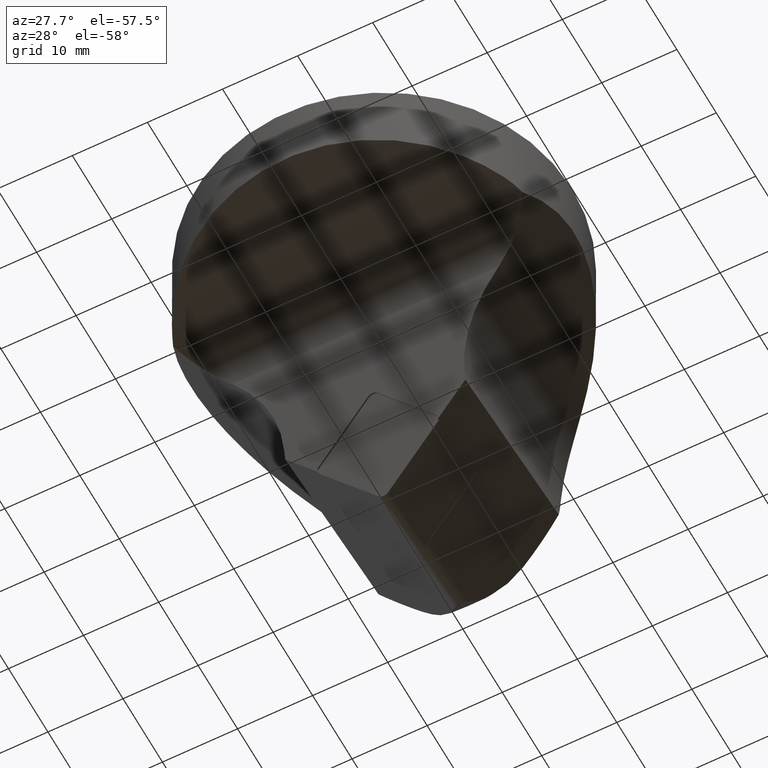
[diagram: clean part render]
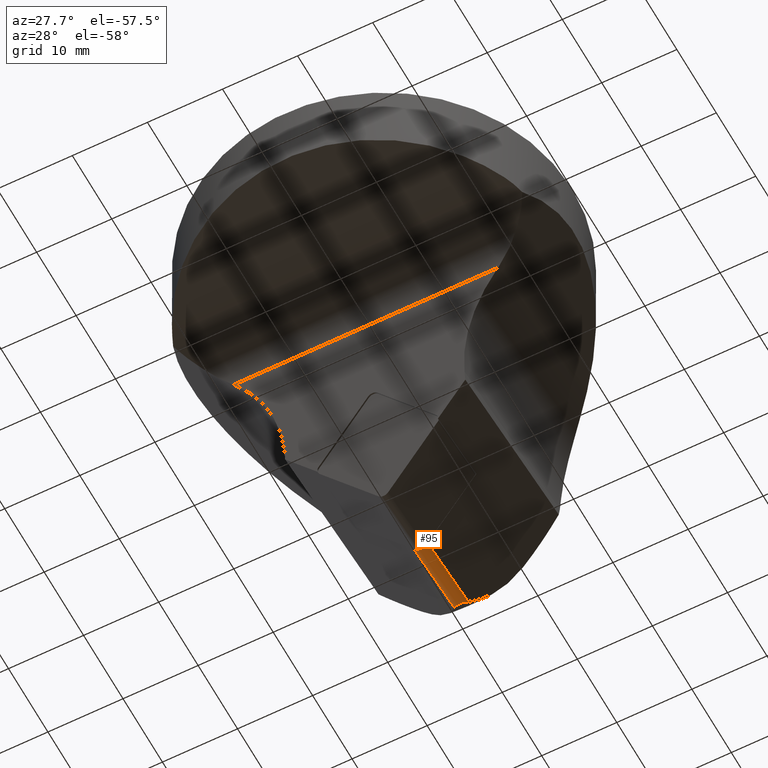
[diagram: same view with one face highlighted and labeled with its STEP entity id]
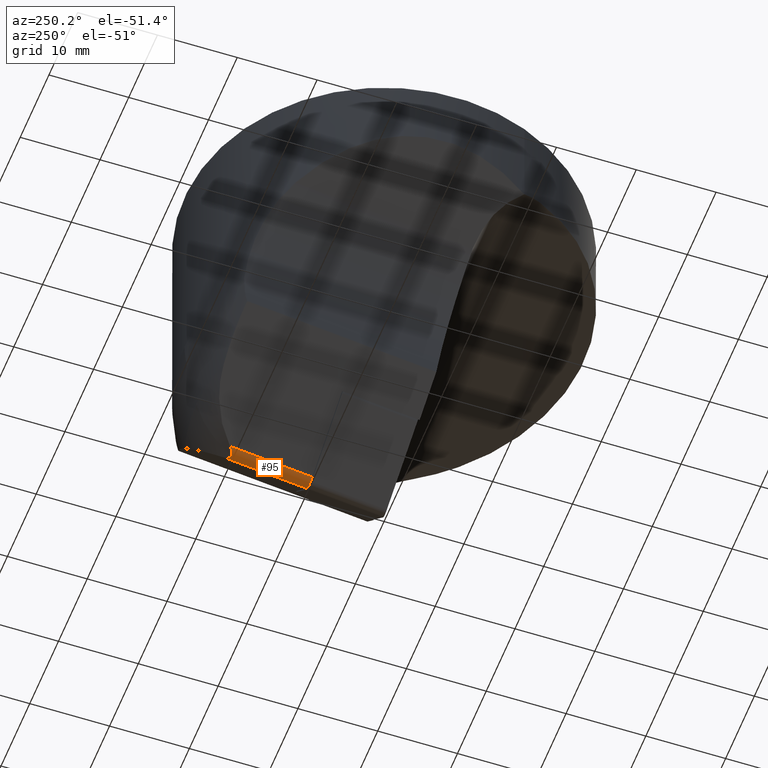
[diagram: same view with one face highlighted and labeled with its STEP entity id]
A machine part, auxiliary view. The second image highlights one B-rep face of the part: STEP entity #95.
A second angle (auxiliary view) of the same face is appended — the face is thin or edge-on in the first view.
In plain terms, the highlighted cylindrical surface (edge-blend (fillet) strip) has radius 1.2 mm, axis along (-0, 0.9903, 0.1392).
Its self-contained STEP definition (entity closure, byte-faithful):
#95=ADVANCED_FACE('',(#153),#154,.T.);
#153=FACE_OUTER_BOUND('',#228,.T.);
#154=CYLINDRICAL_SURFACE('',#229,1.2);
#228=EDGE_LOOP('',(#432,#433,#434,#435,#436));
#229=AXIS2_PLACEMENT_3D('',#437,#438,#439);
#432=ORIENTED_EDGE('',*,*,#625,.T.);
#433=ORIENTED_EDGE('',*,*,#638,.T.);
#434=ORIENTED_EDGE('',*,*,#639,.T.);
#435=ORIENTED_EDGE('',*,*,#640,.T.);
#436=ORIENTED_EDGE('',*,*,#634,.T.);
#437=CARTESIAN_POINT('',(1.37716160953107E-007,-0.219002060417643,-47.8727419098467));
#438=DIRECTION('',(-5.0385871428406E-017,0.99026806874157,0.139173100960065));
#439=DIRECTION('',(-7.85555786313062E-015,0.139173100960065,-0.99026806874157));
#625=EDGE_CURVE('',#759,#757,#760,.T.);
#634=EDGE_CURVE('',#775,#759,#776,.T.);
#638=EDGE_CURVE('',#757,#782,#783,.T.);
#639=EDGE_CURVE('',#782,#784,#785,.T.);
#640=EDGE_CURVE('',#784,#775,#786,.T.);
#757=VERTEX_POINT('',#955);
#759=VERTEX_POINT('',#958);
#760=CIRCLE('',#959,1.2);
#775=VERTEX_POINT('',#980);
#776=LINE('',#981,#982);
#782=VERTEX_POINT('',#1010);
#783=LINE('',#1011,#1012);
#784=VERTEX_POINT('',#1013);
#785=B_SPLINE_CURVE_WITH_KNOTS('',3,(#1014,#1015,#1016,#1017,#1018,#1019,#1020,#1021,#1022,#1023,#1024,#1025,#1026,#1027,#1028,#1029,#1030,#1031,#1032,#1033,#1034,#1035,#1036,#1037,#1038,#1039,#1040,#1041,#1042,#1043,#1044,#1045,#1046,#1047,#1048,#1049,#1050,#1051,#1052),.UNSPECIFIED.,.T.,.F.,(4,2,2,2,2,2,2,2,2,2,2,2,3,2,2,2,2,2,4),(-6.55959540968097,-6.28438091401462,-5.43460213958904,-4.76236291249632,-4.26660962037875,-3.8803165286399,-3.54117582693502,-3.19143252755743,-2.79082664010572,-2.27902404821558,-1.60644723823488,-0.772280773483495,-0.0,0.475300806769262,0.790669706954464,1.08226974436942,1.41214377442436,1.87679784633461,2.26297390892368),.UNSPECIFIED.);
#786=B_SPLINE_CURVE_WITH_KNOTS('',3,(#1053,#1054,#1055,#1056,#1057,#1058,#1059,#1060,#1061,#1062,#1063,#1064,#1065,#1066,#1067,#1068,#1069,#1070,#1071,#1072,#1073,#1074,#1075,#1076,#1077,#1078,#1079,#1080,#1081,#1082,#1083,#1084,#1085,#1086,#1087,#1088,#1089,#1090,#1091,#1092,#1093),.UNSPECIFIED.,.T.,.F.,(4,2,2,2,2,2,2,2,2,2,3,2,2,2,2,2,2,2,2,4),(-6.83424824080733,-5.77560963764622,-4.80357851117702,-4.09139871517256,-3.56036660420175,-3.12484420139114,-2.70961674600007,-2.2838456705617,-1.72956418180956,-0.974378011728449,-0.0,0.0264698733989359,1.03543620296243,1.83111035612359,2.29650190307121,2.68062834295978,3.08254479617005,3.61276562635857,4.40831056555855,4.42241500921273),.UNSPECIFIED.);
#955=CARTESIAN_POINT('',(-0.919253194026623,9.31670149272944,-47.3115117548546));
#958=CARTESIAN_POINT('',(0.91925346945893,9.31670149272945,-47.3115117548546));
#959=AXIS2_PLACEMENT_3D('',#1322,#1323,#1324);
#980=CARTESIAN_POINT('',(0.91925346946594,19.6431831558182,-45.8602194023767));
#981=CARTESIAN_POINT('',(0.91925346945893,19.6431831558194,-45.860219402385));
#982=VECTOR('',#1337,20.2281631507146);
#1010=CARTESIAN_POINT('',(-0.919253194033633,19.6431831707988,-45.8602194002713));
#1011=CARTESIAN_POINT('',(-0.919253194026622,-0.388120901628177,-48.675435594796));
#1012=VECTOR('',#1342,20.2281631658424);
#1013=CARTESIAN_POINT('',(-1.76549147455014E-014,19.1380764292221,-46.3640750285353));
#1014=CARTESIAN_POINT('',(0.91925346946594,19.6431831558182,-45.8602194023767));
#1015=CARTESIAN_POINT('',(0.966868108359388,19.7067391566349,-45.7939846072227));
#1016=CARTESIAN_POINT('',(1.00913168360282,19.7738824757113,-45.7229012055999));
#1017=CARTESIAN_POINT('',(1.15765079633082,20.0575175524389,-45.4168609497786));
#1018=CARTESIAN_POINT('',(1.20860170719827,20.282294831118,-45.1603523919933));
#1019=CARTESIAN_POINT('',(1.19108283098418,20.6561568001406,-44.7091199170116));
#1020=CARTESIAN_POINT('',(1.14504498093148,20.8157282442201,-44.5075921159865));
#1021=CARTESIAN_POINT('',(0.990483802586378,21.0633399102664,-44.1835118925231));
#1022=CARTESIAN_POINT('',(0.900888694903316,21.1600012550039,-44.0530914473245));
#1023=CARTESIAN_POINT('',(0.697043259769537,21.3046279880159,-43.8542038387581));
#1024=CARTESIAN_POINT('',(0.59308815367722,21.3582440844073,-43.7790082018196));
#1025=CARTESIAN_POINT('',(0.373772257418937,21.433469937462,-43.6726623927817));
#1026=CARTESIAN_POINT('',(0.263766953666608,21.4573632414448,-43.6384639138847));
#1027=CARTESIAN_POINT('',(0.031663905631691,21.4801628866342,-43.6058297160695));
#1028=CARTESIAN_POINT('',(-0.0859073444044327,21.477821728047,-43.6091982821086));
#1029=CARTESIAN_POINT('',(-0.329290780529632,21.4457089209316,-43.6551162606808));
#1030=CARTESIAN_POINT('',(-0.448236864060736,21.412811809082,-43.702079833585));
#1031=CARTESIAN_POINT('',(-0.689090151037656,21.3128147883933,-43.8427136513167));
#1032=CARTESIAN_POINT('',(-0.808263236579696,21.2363782344836,-43.9491072620284));
#1033=CARTESIAN_POINT('',(-1.03471754923465,21.0188902164029,-44.2430560435773));
#1034=CARTESIAN_POINT('',(-1.12314091664907,20.8683183061455,-44.4409621368386));
#1035=CARTESIAN_POINT('',(-1.22214266757521,20.4905165980015,-44.9137232095647));
#1036=CARTESIAN_POINT('',(-1.20610010768759,20.2655971898546,-45.1798026622446));
#1037=CARTESIAN_POINT('',(-1.06724039687189,19.8512961969417,-45.6431629922968));
#1038=CARTESIAN_POINT('',(-0.954759823346634,19.6668572007335,-45.8375200756115));
#1039=CARTESIAN_POINT('',(-0.812625584689192,19.5165564848648,-45.9907394427468));
#1040=CARTESIAN_POINT('',(-0.725148956210287,19.4240537915915,-46.0850384222275));
#1041=CARTESIAN_POINT('',(-0.618574835808982,19.3362455182179,-46.1720900348295));
#1042=CARTESIAN_POINT('',(-0.409715105337273,19.2224842267246,-46.2831240948654));
#1043=CARTESIAN_POINT('',(-0.318742710164303,19.1861930074379,-46.3180192133687));
#1044=CARTESIAN_POINT('',(-0.132220224303352,19.1428687671453,-46.3595376734713));
#1045=CARTESIAN_POINT('',(-0.0409592887963538,19.1346228232487,-46.3673707051365));
#1046=CARTESIAN_POINT('',(0.153788271953298,19.1447863627644,-46.3576723597325));
#1047=CARTESIAN_POINT('',(0.251120755589364,19.1664210521449,-46.3370573351116));
#1048=CARTESIAN_POINT('',(0.468204002455675,19.2453547459513,-46.2609395924479));
#1049=CARTESIAN_POINT('',(0.584994137000528,19.3151052774825,-46.1931693495643));
#1050=CARTESIAN_POINT('',(0.775109546384282,19.471875828696,-46.036554478201));
#1051=CARTESIAN_POINT('',(0.852441458983164,19.5540025111363,-45.953158883406));
#1052=CARTESIAN_POINT('',(0.91925346946594,19.6431831558182,-45.8602194023767));
#1053=CARTESIAN_POINT('',(0.91925346947295,19.643183155817,-45.8602194023684));
#1054=CARTESIAN_POINT('',(1.05238650612989,19.8208890795261,-45.6750234286869));
#1055=CARTESIAN_POINT('',(1.14382648426465,20.0261364447161,-45.4518202378396));
#1056=CARTESIAN_POINT('',(1.2155125930355,20.4247020617883,-44.9916892558563));
#1057=CARTESIAN_POINT('',(1.20364113035098,20.6148631988471,-44.760641760044));
#1058=CARTESIAN_POINT('',(1.09215156710886,20.9160129882081,-44.3779371892731));
#1059=CARTESIAN_POINT('',(1.01599338029629,21.0365966827486,-44.2191017896146));
#1060=CARTESIAN_POINT('',(0.825858975323642,21.2196835684067,-43.9716879915414));
#1061=CARTESIAN_POINT('',(0.726189795840487,21.2892873838171,-43.8754001695312));
#1062=CARTESIAN_POINT('',(0.511634128328363,21.390421096174,-43.7337690493638));
#1063=CARTESIAN_POINT('',(0.404104908909969,21.4258665076396,-43.6833802037975));
#1064=CARTESIAN_POINT('',(0.177596558343363,21.4698735237581,-43.6206153858187));
#1065=CARTESIAN_POINT('',(0.0631248411127499,21.478887486252,-43.6076437042386));
#1066=CARTESIAN_POINT('',(-0.169241388773072,21.4710730777544,-43.6188415883965));
#1067=CARTESIAN_POINT('',(-0.282183846814942,21.4537744252704,-43.643673947911));
#1068=CARTESIAN_POINT('',(-0.524541850675675,21.3885383889613,-43.7363399324985));
#1069=CARTESIAN_POINT('',(-0.643923879730234,21.3342892042943,-43.8128767373765));
#1070=CARTESIAN_POINT('',(-0.881892895145152,21.1811099902919,-44.0245692513727));
#1071=CARTESIAN_POINT('',(-0.993048321765444,21.0675796040317,-44.1786556768741));
#1072=CARTESIAN_POINT('',(-1.17194585788895,20.7598780718242,-44.5796333363093));
#1073=CARTESIAN_POINT('',(-1.2132446952657,20.5597374038175,-44.829541258132));
#1074=CARTESIAN_POINT('',(-1.19632109288606,20.3498127234444,-45.0767971966102));
#1075=CARTESIAN_POINT('',(-1.19586134768754,20.3441099267414,-45.0835141312186));
#1076=CARTESIAN_POINT('',(-1.1953587984623,20.3384035866077,-45.0902253049834));
#1077=CARTESIAN_POINT('',(-1.17403220668889,20.1150642349459,-45.3525040818159));
#1078=CARTESIAN_POINT('',(-1.09223760790088,19.8990792316289,-45.5908053289451));
#1079=CARTESIAN_POINT('',(-0.868133177062028,19.5621503028934,-45.9460807976982));
#1080=CARTESIAN_POINT('',(-0.743133063402317,19.4324267073109,-46.076711687344));
#1081=CARTESIAN_POINT('',(-0.517956452737234,19.2770525960706,-46.230140204655));
#1082=CARTESIAN_POINT('',(-0.424249139544617,19.2272901272536,-46.2783973250344));
#1083=CARTESIAN_POINT('',(-0.236415083137213,19.1632004371029,-46.3401244470545));
#1084=CARTESIAN_POINT('',(-0.147092439149685,19.1448692760279,-46.3575930269664));
#1085=CARTESIAN_POINT('',(0.0417001517171748,19.13415248266,-46.3678197338847));
#1086=CARTESIAN_POINT('',(0.136019330819416,19.1432920277959,-46.359136076721));
#1087=CARTESIAN_POINT('',(0.346270608036041,19.1932218335189,-46.31127778616));
#1088=CARTESIAN_POINT('',(0.453708457557672,19.2416624583109,-46.26463522973));
#1089=CARTESIAN_POINT('',(0.688966648179418,19.3866093724359,-46.1223725613415));
#1090=CARTESIAN_POINT('',(0.813025510615526,19.5031168751199,-46.006013971861));
#1091=CARTESIAN_POINT('',(0.915698517435471,19.6384529021492,-45.8651475053023));
#1092=CARTESIAN_POINT('',(0.917479712679621,19.6408155459637,-45.8626868035835));
#1093=CARTESIAN_POINT('',(0.91925346947295,19.643183155817,-45.8602194023684));
#1322=CARTESIAN_POINT('',(1.37716160473383E-007,9.20935099885091,-46.5476733010283));
#1323=DIRECTION('',(2.12750773457629E-017,0.99026806874157,0.139173100960065));
#1324=DIRECTION('',(-7.85555786313062E-015,0.139173100960065,-0.99026806874157));
#1337=DIRECTION('',(5.48850143413014E-017,-0.99026806874157,-0.139173100960065));
#1342=DIRECTION('',(-6.17456410877871E-017,0.99026806874157,0.139173100960065));